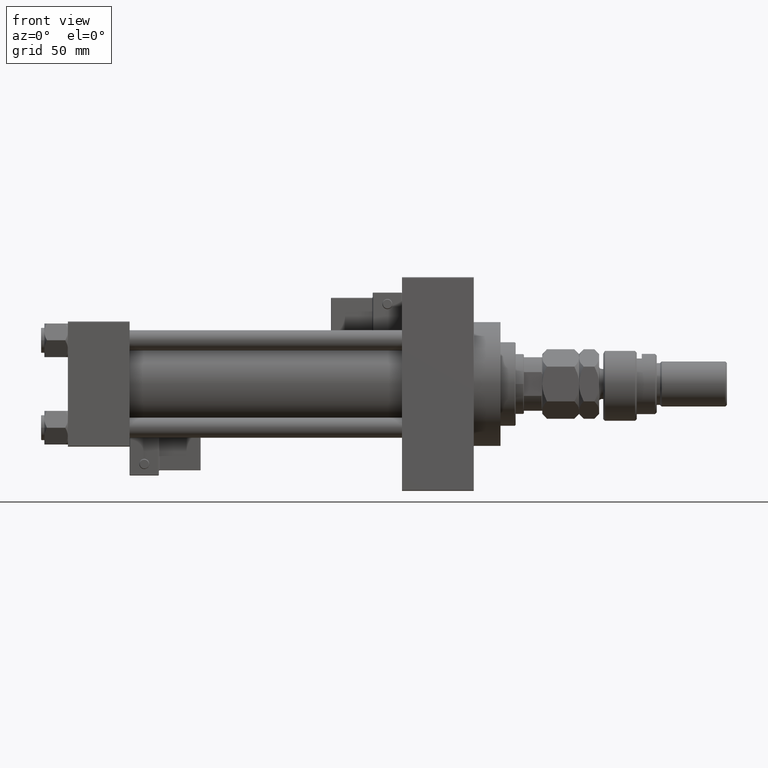
[diagram: clean part render]
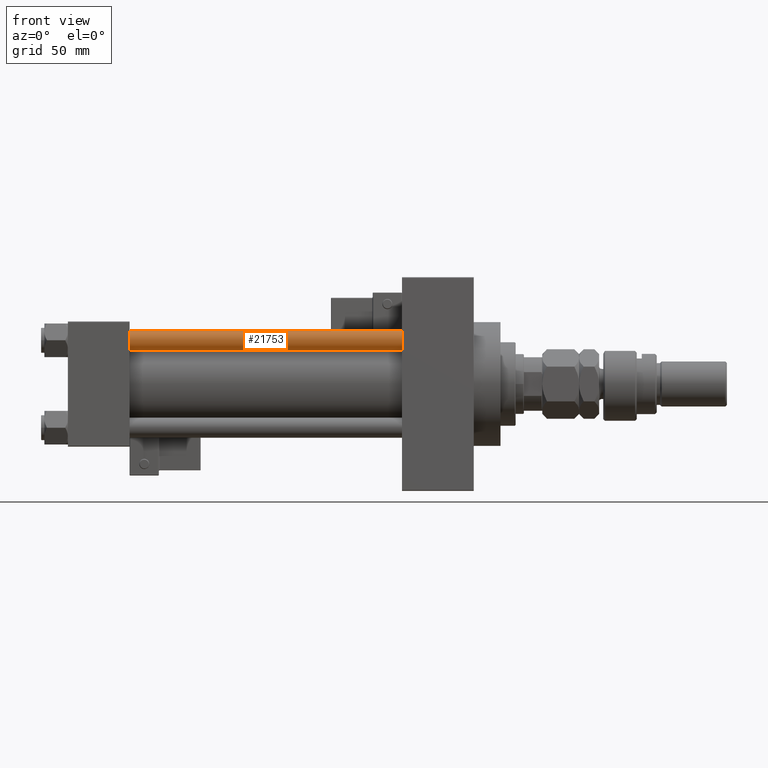
[diagram: same view with one face highlighted and labeled with its STEP entity id]
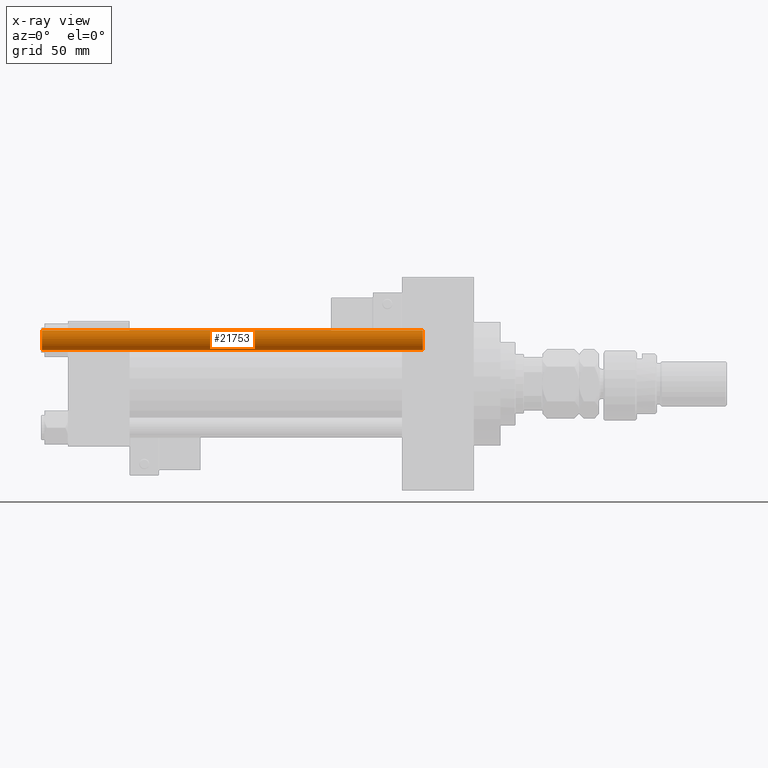
[diagram: x-ray of the same camera — body ghosted, the highlighted face saturated]
A machine part, front view. The second image highlights one B-rep face of the part: STEP entity #21753.
The next image is the same camera in x-ray: the body ghosted, the highlighted face saturated — about 0% of this face is hidden behind the body in this view.
In plain terms, the highlighted cylindrical surface (edge-blend (fillet) strip) has radius 6 mm, axis along (1, 0, 0).
Its self-contained STEP definition (entity closure, byte-faithful):
#1729 = CARTESIAN_POINT ( 'NONE',  ( -6.000000000000000888, 0.000000000000000000, 0.5000000000001392220 ) ) ;
#1963 = VECTOR ( 'NONE', #48172, 1000.000000000000000 ) ;
#2124 = LINE ( 'NONE', #15101, #45928 ) ;
#2279 = DIRECTION ( 'NONE',  ( 1.000000000000000000, 0.000000000000000000, 0.000000000000000000 ) ) ;
#2412 = EDGE_CURVE ( 'NONE', #28096, #48815, #17771, .T. ) ;
#5763 = AXIS2_PLACEMENT_3D ( 'NONE', #25494, #25749, #8622 ) ;
#8622 = DIRECTION ( 'NONE',  ( 1.000000000000000000, 0.000000000000000000, 0.000000000000000000 ) ) ;
#10317 = AXIS2_PLACEMENT_3D ( 'NONE', #14717, #36261, #2279 ) ;
#11503 = VERTEX_POINT ( 'NONE', #23397 ) ;
#13090 = CARTESIAN_POINT ( 'NONE',  ( 0.000000000000000000, 0.000000000000000000, 229.0000000000000000 ) ) ;
#14717 = CARTESIAN_POINT ( 'NONE',  ( 0.000000000000000000, 0.000000000000000000, 0.5000000000001392220 ) ) ;
#14834 = DIRECTION ( 'NONE',  ( -0.000000000000000000, -0.000000000000000000, -1.000000000000000000 ) ) ;
#15101 = CARTESIAN_POINT ( 'NONE',  ( 6.000000000000000888, 7.347880794884119736E-16, 229.0000000000000000 ) ) ;
#16912 = ORIENTED_EDGE ( 'NONE', *, *, #24461, .T. ) ;
#17251 = FACE_OUTER_BOUND ( 'NONE', #39718, .T. ) ;
#17524 = DIRECTION ( 'NONE',  ( -0.000000000000000000, -0.000000000000000000, -1.000000000000000000 ) ) ;
#17771 = LINE ( 'NONE', #43467, #1963 ) ;
#18734 = ORIENTED_EDGE ( 'NONE', *, *, #39526, .T. ) ;
#21753 = ADVANCED_FACE ( 'NONE', ( #17251 ), #50992, .T. ) ;
#23397 = CARTESIAN_POINT ( 'NONE',  ( 6.000000000000000888, 7.347880794884119736E-16, 0.5000000000001392220 ) ) ;
#24461 = EDGE_CURVE ( 'NONE', #34210, #11503, #2124, .T. ) ;
#25214 = CIRCLE ( 'NONE', #5763, 6.000000000000000888 ) ;
#25440 = ORIENTED_EDGE ( 'NONE', *, *, #37670, .T. ) ;
#25494 = CARTESIAN_POINT ( 'NONE',  ( 0.000000000000000000, 0.000000000000000000, 228.5000000000001137 ) ) ;
#25749 = DIRECTION ( 'NONE',  ( 0.000000000000000000, 0.000000000000000000, -1.000000000000000000 ) ) ;
#28096 = VERTEX_POINT ( 'NONE', #38911 ) ;
#30134 = ORIENTED_EDGE ( 'NONE', *, *, #2412, .F. ) ;
#34210 = VERTEX_POINT ( 'NONE', #41743 ) ;
#36261 = DIRECTION ( 'NONE',  ( -0.000000000000000000, -0.000000000000000000, 1.000000000000000000 ) ) ;
#37670 = EDGE_CURVE ( 'NONE', #28096, #34210, #25214, .T. ) ;
#37678 = CIRCLE ( 'NONE', #10317, 6.000000000000000888 ) ;
#38911 = CARTESIAN_POINT ( 'NONE',  ( -6.000000000000000888, 0.000000000000000000, 228.5000000000001137 ) ) ;
#39526 = EDGE_CURVE ( 'NONE', #11503, #48815, #37678, .T. ) ;
#39718 = EDGE_LOOP ( 'NONE', ( #25440, #16912, #18734, #30134 ) ) ;
#40502 = AXIS2_PLACEMENT_3D ( 'NONE', #13090, #17524, #43479 ) ;
#41743 = CARTESIAN_POINT ( 'NONE',  ( 6.000000000000000888, 7.347880794884119736E-16, 228.5000000000001137 ) ) ;
#43467 = CARTESIAN_POINT ( 'NONE',  ( -6.000000000000000888, 0.000000000000000000, 229.0000000000000000 ) ) ;
#43479 = DIRECTION ( 'NONE',  ( -1.000000000000000000, 0.000000000000000000, 0.000000000000000000 ) ) ;
#45928 = VECTOR ( 'NONE', #14834, 1000.000000000000000 ) ;
#48172 = DIRECTION ( 'NONE',  ( -0.000000000000000000, -0.000000000000000000, -1.000000000000000000 ) ) ;
#48815 = VERTEX_POINT ( 'NONE', #1729 ) ;
#50992 = CYLINDRICAL_SURFACE ( 'NONE', #40502, 6.000000000000000888 ) ;